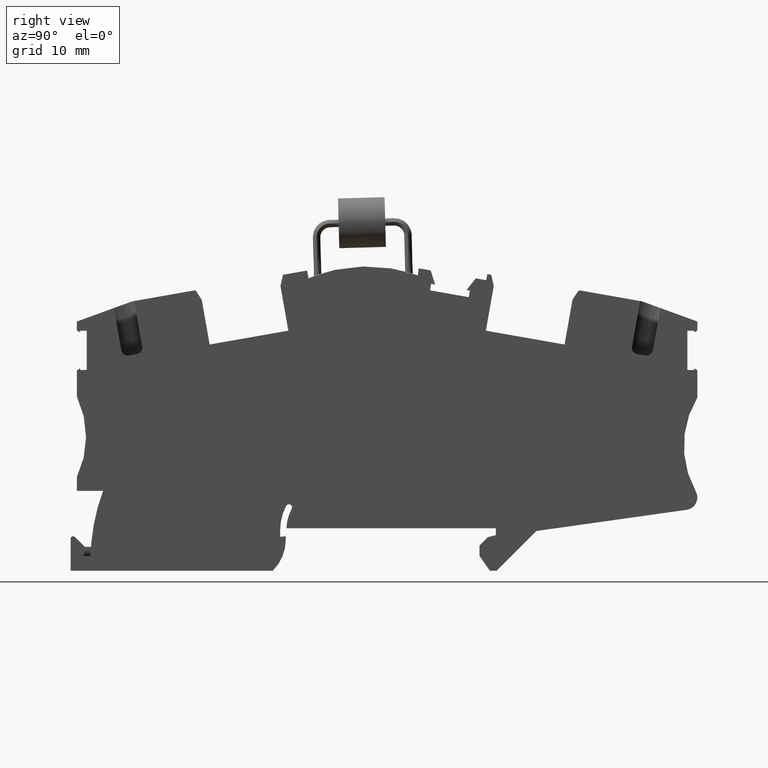
[diagram: clean part render]
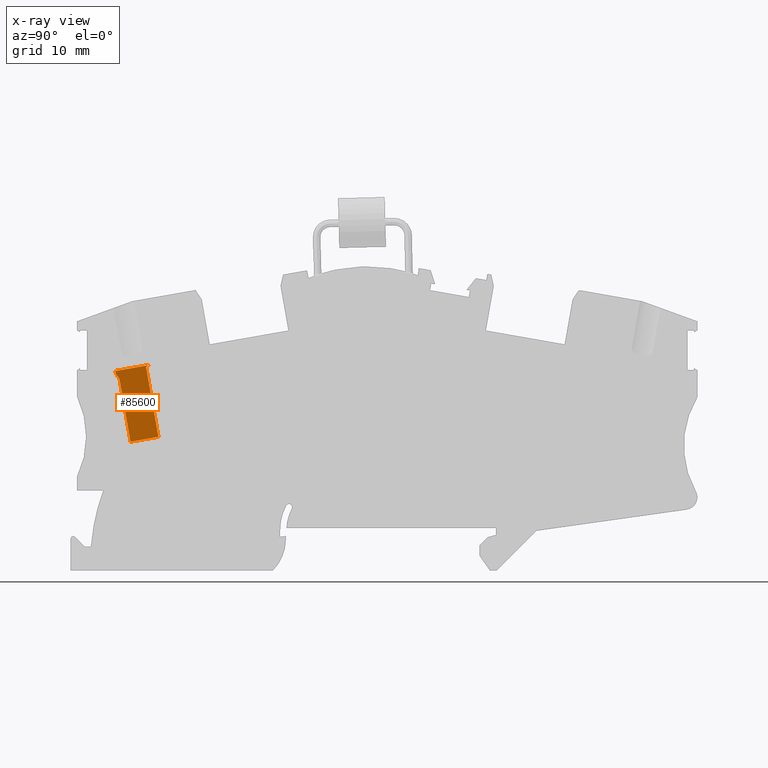
[diagram: x-ray — body ghosted, one internal face saturated and labeled with its STEP entity id]
A machine part, right view, then the same camera in x-ray: the body is ghosted and one INTERNAL B-rep face — a face not visible from any outside direction — is saturated and labeled: STEP entity #85600.
In plain terms, the highlighted planar face has unit normal (1, 0, 0).
Its self-contained STEP definition (entity closure, byte-faithful):
#84370=CARTESIAN_POINT('',(-42.5173532458062,12.5678006560687,
-52.1699999883233));
#84380=VERTEX_POINT('',#84370);
#84550=CARTESIAN_POINT('',(-42.092456554324,13.4789945514615,
-52.1699999882322));
#84560=VERTEX_POINT('',#84550);
#84590=CARTESIAN_POINT('',(-48.3778149378484,-1.35003119794419E-13,
-52.1699999896844));
#84600=DIRECTION('',(0.422618261737845,0.906307787037981,
9.76442815492362E-11));
#84610=VECTOR('',#84600,1.);
#84620=LINE('',#84590,#84610);
#84630=EDGE_CURVE('',#84380,#84560,#84620,.T.);
#84930=CARTESIAN_POINT('',(-42.0924565543562,23.709110644109,
-52.1699999882476));
#84940=VERTEX_POINT('',#84930);
#84970=CARTESIAN_POINT('',(-42.0924565542815,-1.4210854715202E-13,
-52.1699999882119));
#84980=DIRECTION('',(3.14931414295577E-12,-1.,1.50598844753127E-12));
#84990=VECTOR('',#84980,1.);
#85000=LINE('',#84970,#84990);
#85010=EDGE_CURVE('',#84940,#84560,#85000,.T.);
#85130=CARTESIAN_POINT('',(-34.492454154319,12.0789945514866,
-52.1699999864496));
#85140=DIRECTION('',(2.34275568727641E-10,-1.50598844679346E-12,-1.));
#85150=DIRECTION('',(-3.14931414295577E-12,1.,-1.50598844753127E-12));
#85160=AXIS2_PLACEMENT_3D('',#85130,#85140,#85150);
#85170=PLANE('',#85160);
#85180=CARTESIAN_POINT('',(3.5527136788005E-14,23.7091106442398,
-52.1699999783863));
#85190=DIRECTION('',(1.,3.10645953390859E-12,2.34275568727636E-10));
#85200=VECTOR('',#85190,1.);
#85210=LINE('',#85180,#85200);
#85220=CARTESIAN_POINT('',(-37.5373875092544,23.7091106441232,
-52.1699999871804));
#85230=VERTEX_POINT('',#85220);
#85240=EDGE_CURVE('',#84940,#85230,#85210,.T.);
#85250=ORIENTED_EDGE('',*,*,#85240,.F.);
#85260=CARTESIAN_POINT('',(-37.537387509177,-1.4210854715202E-13,
-52.1699999871447));
#85270=DIRECTION('',(-3.26533244887657E-12,1.,-1.50598844755845E-12));
#85280=VECTOR('',#85270,1.);
#85290=LINE('',#85260,#85280);
#85300=CARTESIAN_POINT('',(-37.5373875092172,12.3294946306468,
-52.1699999871633));
#85310=VERTEX_POINT('',#85300);
#85320=EDGE_CURVE('',#85310,#85230,#85290,.T.);
#85330=ORIENTED_EDGE('',*,*,#85320,.T.);
#85340=CARTESIAN_POINT('',(3.5527136788005E-14,-9.34272615232058,
-52.1699999783366));
#85350=DIRECTION('',(-0.866025403785982,0.499999999997326,
-2.03641603579996E-10));
#85360=VECTOR('',#85350,1.);
#85370=LINE('',#85340,#85360);
#85380=CARTESIAN_POINT('',(-37.1035086447895,12.0789945514755,
-52.1699999870613));
#85390=VERTEX_POINT('',#85380);
#85400=EDGE_CURVE('',#85390,#85310,#85370,.T.);
#85410=ORIENTED_EDGE('',*,*,#85400,.T.);
#85420=CARTESIAN_POINT('',(3.5527136788005E-14,12.0789945515924,
-52.1699999783688));
#85430=DIRECTION('',(1.,3.14918253476759E-12,2.34275568727636E-10));
#85440=VECTOR('',#85430,1.);
#85450=LINE('',#85420,#85440);
#85460=CARTESIAN_POINT('',(-42.5173532458013,12.0789945514605,
-52.1699999883279));
#85470=VERTEX_POINT('',#85460);
#85480=EDGE_CURVE('',#85470,#85390,#85450,.T.);
#85490=ORIENTED_EDGE('',*,*,#85480,.T.);
#85500=CARTESIAN_POINT('',(-42.5173532457809,1.50911064137855,
-52.1699999883137));
#85510=DIRECTION('',(3.10582115636857E-12,-1.,-2.0716625747041E-13));
#85520=VECTOR('',#85510,1.);
#85530=LINE('',#85500,#85520);
#85540=EDGE_CURVE('',#84380,#85470,#85530,.T.);
#85550=ORIENTED_EDGE('',*,*,#85540,.T.);
#85560=ORIENTED_EDGE('',*,*,#84630,.F.);
#85570=ORIENTED_EDGE('',*,*,#85010,.T.);
#85580=EDGE_LOOP('',(#85570,#85560,#85550,#85490,#85410,#85330,#85250));
#85590=FACE_OUTER_BOUND('',#85580,.T.);
#85600=ADVANCED_FACE('',(#85590),#85170,.F.);